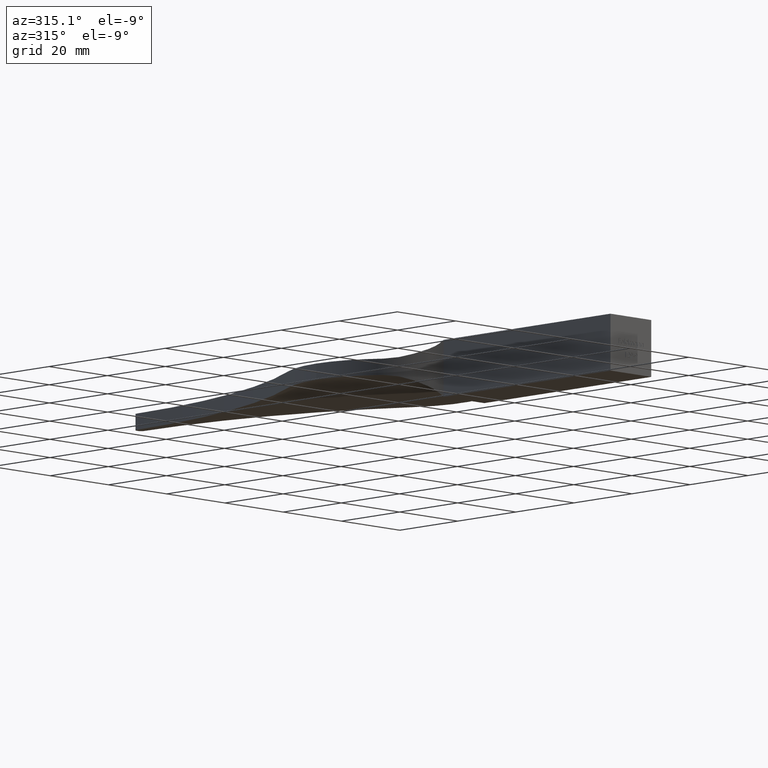
[diagram: clean part render]
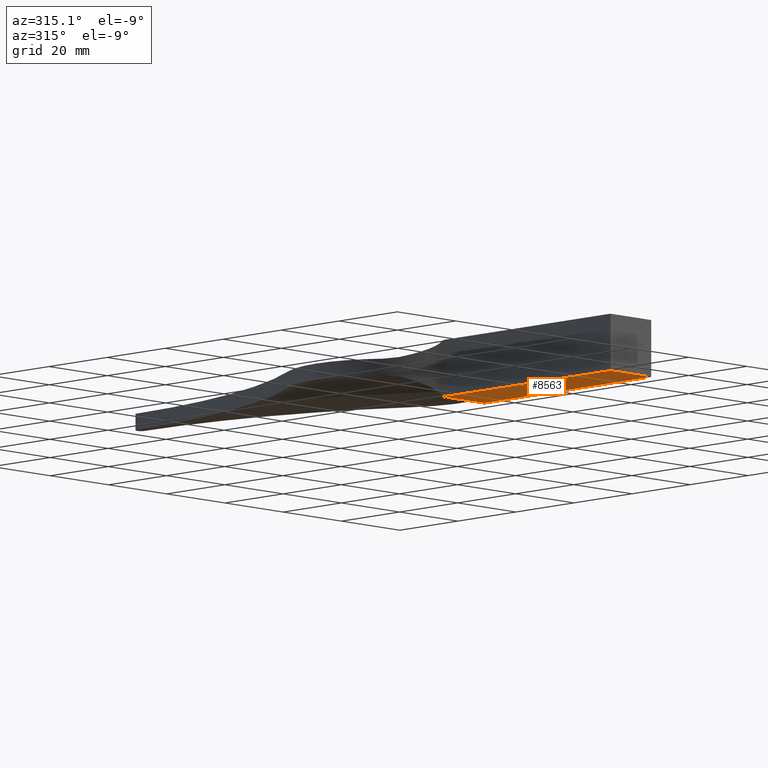
[diagram: same view with one face highlighted and labeled with its STEP entity id]
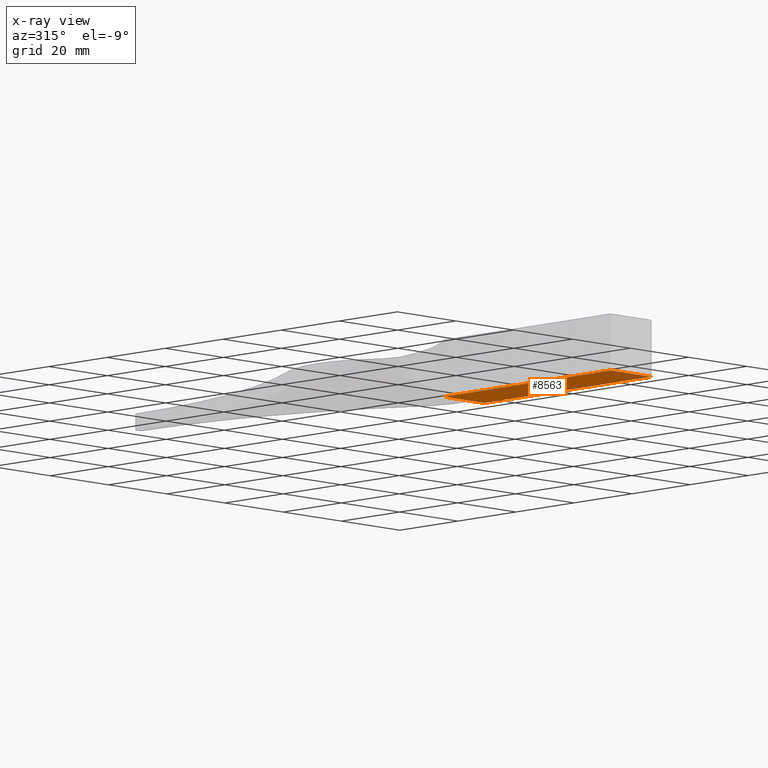
[diagram: x-ray of the same camera — body ghosted, the highlighted face saturated]
A machine part, auxiliary view. The second image highlights one B-rep face of the part: STEP entity #8563.
The next image is the same camera in x-ray: the body ghosted, the highlighted face saturated — about 0% of this face is hidden behind the body in this view.
In plain terms, the highlighted planar face has unit normal (0, 0, 1).
Its self-contained STEP definition (entity closure, byte-faithful):
#63 = CARTESIAN_POINT ( 'NONE',  ( 7.000000000000000000, 57.50000000000000000, -7.000000000000000000 ) ) ;
#109 = ORIENTED_EDGE ( 'NONE', *, *, #3232, .T. ) ;
#455 = FACE_OUTER_BOUND ( 'NONE', #4570, .T. ) ;
#729 = LINE ( 'NONE', #9039, #8195 ) ;
#1144 = EDGE_CURVE ( 'NONE', #3747, #3331, #8558, .T. ) ;
#1754 = CARTESIAN_POINT ( 'NONE',  ( -7.000000000000000900, 0.0000000000000000000, -7.000000000000000000 ) ) ;
#1917 = CARTESIAN_POINT ( 'NONE',  ( -7.000000000000000900, 57.50000000000000000, -7.000000000000000000 ) ) ;
#2282 = LINE ( 'NONE', #5090, #5715 ) ;
#2378 = CARTESIAN_POINT ( 'NONE',  ( 7.000000000000000000, 0.0000000000000000000, -7.000000000000000000 ) ) ;
#2945 = DIRECTION ( 'NONE',  ( 1.000000000000000000, 0.0000000000000000000, -0.0000000000000000000 ) ) ;
#3121 = EDGE_CURVE ( 'NONE', #3781, #6039, #2282, .T. ) ;
#3232 = EDGE_CURVE ( 'NONE', #3747, #3781, #9094, .T. ) ;
#3331 = VERTEX_POINT ( 'NONE', #6028 ) ;
#3633 = CARTESIAN_POINT ( 'NONE',  ( -7.000000000000000900, 57.50000000000000000, -7.000000000000000000 ) ) ;
#3654 = ORIENTED_EDGE ( 'NONE', *, *, #3121, .T. ) ;
#3747 = VERTEX_POINT ( 'NONE', #4538 ) ;
#3755 = VECTOR ( 'NONE', #5134, 1000.000000000000000 ) ;
#3781 = VERTEX_POINT ( 'NONE', #2378 ) ;
#4357 = DIRECTION ( 'NONE',  ( -1.000000000000000000, -0.0000000000000000000, -0.0000000000000000000 ) ) ;
#4445 = VECTOR ( 'NONE', #9127, 1000.000000000000000 ) ;
#4538 = CARTESIAN_POINT ( 'NONE',  ( 7.000000000000000000, 57.50000000000000000, -7.000000000000000000 ) ) ;
#4570 = EDGE_LOOP ( 'NONE', ( #3654, #7535, #5896, #109 ) ) ;
#5090 = CARTESIAN_POINT ( 'NONE',  ( -7.000000000000000900, 0.0000000000000000000, -7.000000000000000000 ) ) ;
#5134 = DIRECTION ( 'NONE',  ( -0.0000000000000000000, -1.000000000000000000, -0.0000000000000000000 ) ) ;
#5715 = VECTOR ( 'NONE', #4357, 1000.000000000000000 ) ;
#5822 = PLANE ( 'NONE',  #7103 ) ;
#5896 = ORIENTED_EDGE ( 'NONE', *, *, #1144, .F. ) ;
#6028 = CARTESIAN_POINT ( 'NONE',  ( -7.000000000000000900, 57.50000000000000000, -7.000000000000000000 ) ) ;
#6039 = VERTEX_POINT ( 'NONE', #1754 ) ;
#7103 = AXIS2_PLACEMENT_3D ( 'NONE', #3633, #7290, #2945 ) ;
#7290 = DIRECTION ( 'NONE',  ( 0.0000000000000000000, 0.0000000000000000000, 1.000000000000000000 ) ) ;
#7297 = DIRECTION ( 'NONE',  ( -0.0000000000000000000, -1.000000000000000000, -0.0000000000000000000 ) ) ;
#7535 = ORIENTED_EDGE ( 'NONE', *, *, #8310, .F. ) ;
#8195 = VECTOR ( 'NONE', #7297, 1000.000000000000000 ) ;
#8310 = EDGE_CURVE ( 'NONE', #3331, #6039, #729, .T. ) ;
#8558 = LINE ( 'NONE', #1917, #4445 ) ;
#8563 = ADVANCED_FACE ( 'NONE', ( #455 ), #5822, .F. ) ;
#9039 = CARTESIAN_POINT ( 'NONE',  ( -7.000000000000000900, 57.50000000000000000, -7.000000000000000000 ) ) ;
#9094 = LINE ( 'NONE', #63, #3755 ) ;
#9127 = DIRECTION ( 'NONE',  ( -1.000000000000000000, -0.0000000000000000000, -0.0000000000000000000 ) ) ;